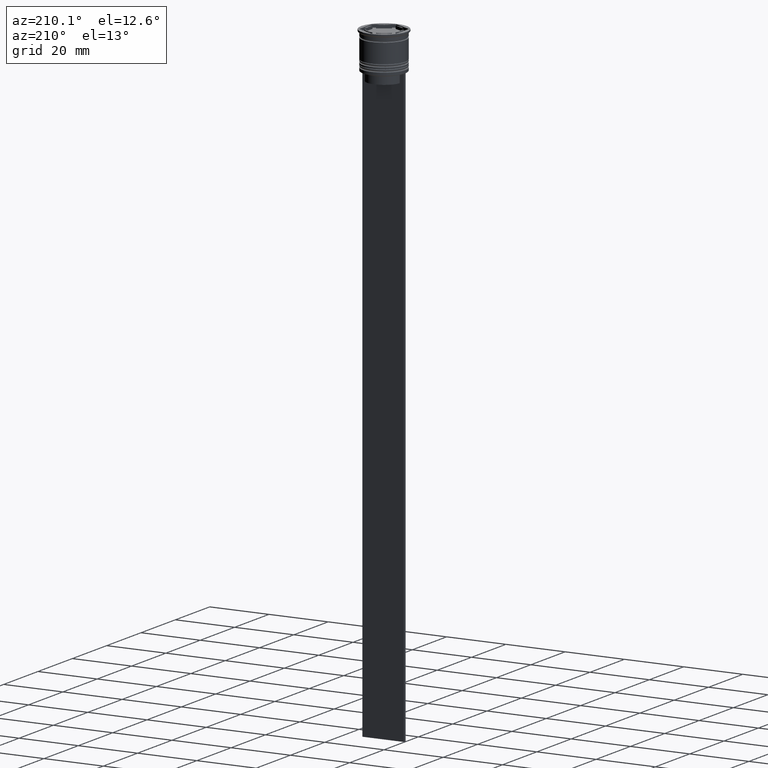
[diagram: clean part render]
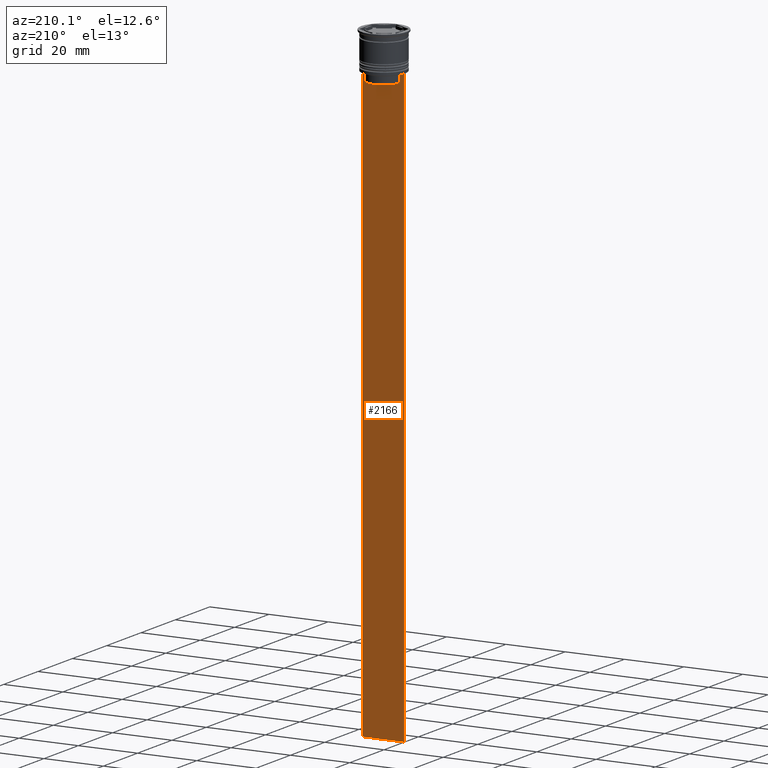
[diagram: same view with one face highlighted and labeled with its STEP entity id]
A machine part, auxiliary view. The second image highlights one B-rep face of the part: STEP entity #2166.
In plain terms, the highlighted planar face has unit normal (0, -1, -0).
Its self-contained STEP definition (entity closure, byte-faithful):
#17 = B_SPLINE_CURVE_WITH_KNOTS ( 'NONE', 3,
 ( #923, #1289, #1796, #1613 ),
 .UNSPECIFIED., .F., .F.,
 ( 4, 4 ),
 ( 0.01045365750109871796, 0.01116204421161398619 ),
 .UNSPECIFIED. ) ;
#47 = LINE ( 'NONE', #1838, #304 ) ;
#71 = CARTESIAN_POINT ( 'NONE',  ( 7.000000000000012434, 0.4999999999999978351, -212.5000000000000284 ) ) ;
#87 = ORIENTED_EDGE ( 'NONE', *, *, #846, .T. ) ;
#104 = ORIENTED_EDGE ( 'NONE', *, *, #1924, .T. ) ;
#147 = LINE ( 'NONE', #2311, #1175 ) ;
#173 = EDGE_CURVE ( 'NONE', #619, #567, #1076, .T. ) ;
#193 = ORIENTED_EDGE ( 'NONE', *, *, #2230, .T. ) ;
#249 = DIRECTION ( 'NONE',  ( -0.000000000000000000, -0.000000000000000000, 1.000000000000000000 ) ) ;
#275 = CARTESIAN_POINT ( 'NONE',  ( 5.627832620112292794, 0.4999999999999978351, -13.00000000000000000 ) ) ;
#304 = VECTOR ( 'NONE', #2029, 1000.000000000000000 ) ;
#447 = VERTEX_POINT ( 'NONE', #2047 ) ;
#468 = VECTOR ( 'NONE', #2023, 1000.000000000000000 ) ;
#477 = B_SPLINE_CURVE_WITH_KNOTS ( 'NONE', 3,
 ( #275, #781, #1321, #794 ),
 .UNSPECIFIED., .F., .F.,
 ( 4, 4 ),
 ( 0.02651134470867373347, 0.02721991123504337307 ),
 .UNSPECIFIED. ) ;
#502 = CARTESIAN_POINT ( 'NONE',  ( -6.999999999999987566, 0.4999999999999978351, -212.5000000000000284 ) ) ;
#517 = LINE ( 'NONE', #1907, #1817 ) ;
#530 = CARTESIAN_POINT ( 'NONE',  ( -6.999999999999987566, 0.4999999999999978351, 1.535668847618198329 ) ) ;
#546 = ORIENTED_EDGE ( 'NONE', *, *, #173, .F. ) ;
#559 = LINE ( 'NONE', #2178, #1407 ) ;
#565 = ORIENTED_EDGE ( 'NONE', *, *, #1609, .T. ) ;
#567 = VERTEX_POINT ( 'NONE', #502 ) ;
#619 = VERTEX_POINT ( 'NONE', #2282 ) ;
#658 = EDGE_CURVE ( 'NONE', #2154, #1149, #1938, .T. ) ;
#670 = CARTESIAN_POINT ( 'NONE',  ( -6.129641098791995368, 0.4999999999999978351, -12.50000000000000000 ) ) ;
#685 = PLANE ( 'NONE',  #1663 ) ;
#729 = VERTEX_POINT ( 'NONE', #760 ) ;
#748 = EDGE_CURVE ( 'NONE', #1535, #2154, #47, .T. ) ;
#760 = CARTESIAN_POINT ( 'NONE',  ( 6.129641098791995368, 0.4999999999999978351, -12.50000000000000000 ) ) ;
#781 = CARTESIAN_POINT ( 'NONE',  ( 5.795128760752291441, 0.4999999999999978351, -12.83336023406855020 ) ) ;
#794 = CARTESIAN_POINT ( 'NONE',  ( 6.129641098791995368, 0.4999999999999978351, -12.50000000000000000 ) ) ;
#846 = EDGE_CURVE ( 'NONE', #934, #729, #477, .T. ) ;
#856 = EDGE_LOOP ( 'NONE', ( #1425, #1948, #2021, #864, #565, #87, #193, #104, #2123, #546 ) ) ;
#864 = ORIENTED_EDGE ( 'NONE', *, *, #658, .T. ) ;
#920 = CARTESIAN_POINT ( 'NONE',  ( -5.627832620112292794, 0.4999999999999978351, -13.00000000000000000 ) ) ;
#923 = CARTESIAN_POINT ( 'NONE',  ( -6.129641098791995368, 0.4999999999999978351, -12.50000000000000000 ) ) ;
#934 = VERTEX_POINT ( 'NONE', #1723 ) ;
#951 = LINE ( 'NONE', #1858, #1887 ) ;
#1033 = CARTESIAN_POINT ( 'NONE',  ( 0.000000000000000000, 0.4999999999999978351, -15.50000000000000000 ) ) ;
#1076 = LINE ( 'NONE', #530, #1875 ) ;
#1102 = EDGE_CURVE ( 'NONE', #2137, #1535, #17, .T. ) ;
#1149 = VERTEX_POINT ( 'NONE', #2197 ) ;
#1175 = VECTOR ( 'NONE', #1900, 1000.000000000000000 ) ;
#1289 = CARTESIAN_POINT ( 'NONE',  ( -5.962396146966409738, 0.4999999999999978351, -12.66669130573587054 ) ) ;
#1321 = CARTESIAN_POINT ( 'NONE',  ( 5.962396079681187011, 0.4999999999999978351, -12.66669137279835411 ) ) ;
#1376 = VERTEX_POINT ( 'NONE', #1378 ) ;
#1378 = CARTESIAN_POINT ( 'NONE',  ( 7.000000000000012434, 0.4999999999999978351, -212.5000000000000284 ) ) ;
#1390 = FACE_OUTER_BOUND ( 'NONE', #856, .T. ) ;
#1407 = VECTOR ( 'NONE', #1815, 1000.000000000000000 ) ;
#1413 = DIRECTION ( 'NONE',  ( 0.000000000000000000, 0.000000000000000000, -1.000000000000000000 ) ) ;
#1425 = ORIENTED_EDGE ( 'NONE', *, *, #1786, .T. ) ;
#1525 = DIRECTION ( 'NONE',  ( 0.000000000000000000, 0.000000000000000000, -1.000000000000000000 ) ) ;
#1535 = VERTEX_POINT ( 'NONE', #920 ) ;
#1609 = EDGE_CURVE ( 'NONE', #1149, #934, #951, .T. ) ;
#1613 = CARTESIAN_POINT ( 'NONE',  ( -5.627832620112292794, 0.4999999999999978351, -13.00000000000000000 ) ) ;
#1662 = DIRECTION ( 'NONE',  ( 1.000000000000000000, 0.000000000000000000, 0.000000000000000000 ) ) ;
#1663 = AXIS2_PLACEMENT_3D ( 'NONE', #2328, #1921, #1935 ) ;
#1712 = EDGE_CURVE ( 'NONE', #1376, #567, #2048, .T. ) ;
#1723 = CARTESIAN_POINT ( 'NONE',  ( 5.627832620112292794, 0.4999999999999978351, -13.00000000000000000 ) ) ;
#1786 = EDGE_CURVE ( 'NONE', #619, #2137, #147, .T. ) ;
#1796 = CARTESIAN_POINT ( 'NONE',  ( -5.795128834036803234, 0.4999999999999978351, -12.83336016107156574 ) ) ;
#1815 = DIRECTION ( 'NONE',  ( 1.000000000000000000, 0.000000000000000000, 0.000000000000000000 ) ) ;
#1817 = VECTOR ( 'NONE', #1525, 1000.000000000000000 ) ;
#1838 = CARTESIAN_POINT ( 'NONE',  ( -5.627832620112292794, 0.4999999999999978351, 0.000000000000000000 ) ) ;
#1858 = CARTESIAN_POINT ( 'NONE',  ( 5.627832620112292794, 0.4999999999999978351, 0.000000000000000000 ) ) ;
#1875 = VECTOR ( 'NONE', #1413, 1000.000000000000000 ) ;
#1887 = VECTOR ( 'NONE', #249, 1000.000000000000000 ) ;
#1900 = DIRECTION ( 'NONE',  ( 1.000000000000000000, 0.000000000000000000, 0.000000000000000000 ) ) ;
#1907 = CARTESIAN_POINT ( 'NONE',  ( 7.000000000000012434, 0.4999999999999978351, 1.535668847618198329 ) ) ;
#1921 = DIRECTION ( 'NONE',  ( 0.000000000000000000, -1.000000000000000000, -0.000000000000000000 ) ) ;
#1924 = EDGE_CURVE ( 'NONE', #447, #1376, #517, .T. ) ;
#1935 = DIRECTION ( 'NONE',  ( 0.000000000000000000, 0.000000000000000000, -1.000000000000000000 ) ) ;
#1938 = LINE ( 'NONE', #1033, #2266 ) ;
#1948 = ORIENTED_EDGE ( 'NONE', *, *, #1102, .T. ) ;
#2021 = ORIENTED_EDGE ( 'NONE', *, *, #748, .T. ) ;
#2023 = DIRECTION ( 'NONE',  ( -1.000000000000000000, 0.000000000000000000, 0.000000000000000000 ) ) ;
#2029 = DIRECTION ( 'NONE',  ( 0.000000000000000000, 0.000000000000000000, -1.000000000000000000 ) ) ;
#2047 = CARTESIAN_POINT ( 'NONE',  ( 7.000000000000012434, 0.4999999999999978351, -12.50000000000000000 ) ) ;
#2048 = LINE ( 'NONE', #71, #468 ) ;
#2123 = ORIENTED_EDGE ( 'NONE', *, *, #1712, .T. ) ;
#2137 = VERTEX_POINT ( 'NONE', #670 ) ;
#2154 = VERTEX_POINT ( 'NONE', #2301 ) ;
#2166 = ADVANCED_FACE ( 'NONE', ( #1390 ), #685, .F. ) ;
#2178 = CARTESIAN_POINT ( 'NONE',  ( 7.000000000000012434, 0.4999999999999978351, -12.50000000000000000 ) ) ;
#2197 = CARTESIAN_POINT ( 'NONE',  ( 5.627832620112292794, 0.4999999999999978351, -15.50000000000000000 ) ) ;
#2230 = EDGE_CURVE ( 'NONE', #729, #447, #559, .T. ) ;
#2266 = VECTOR ( 'NONE', #1662, 1000.000000000000000 ) ;
#2282 = CARTESIAN_POINT ( 'NONE',  ( -6.999999999999987566, 0.4999999999999980571, -12.50000000000000000 ) ) ;
#2301 = CARTESIAN_POINT ( 'NONE',  ( -5.627832620112292794, 0.4999999999999978351, -15.50000000000000000 ) ) ;
#2311 = CARTESIAN_POINT ( 'NONE',  ( 7.000000000000012434, 0.4999999999999978351, -12.50000000000000000 ) ) ;
#2328 = CARTESIAN_POINT ( 'NONE',  ( 7.000000000000012434, 0.4999999999999978351, 1.535668847618198329 ) ) ;